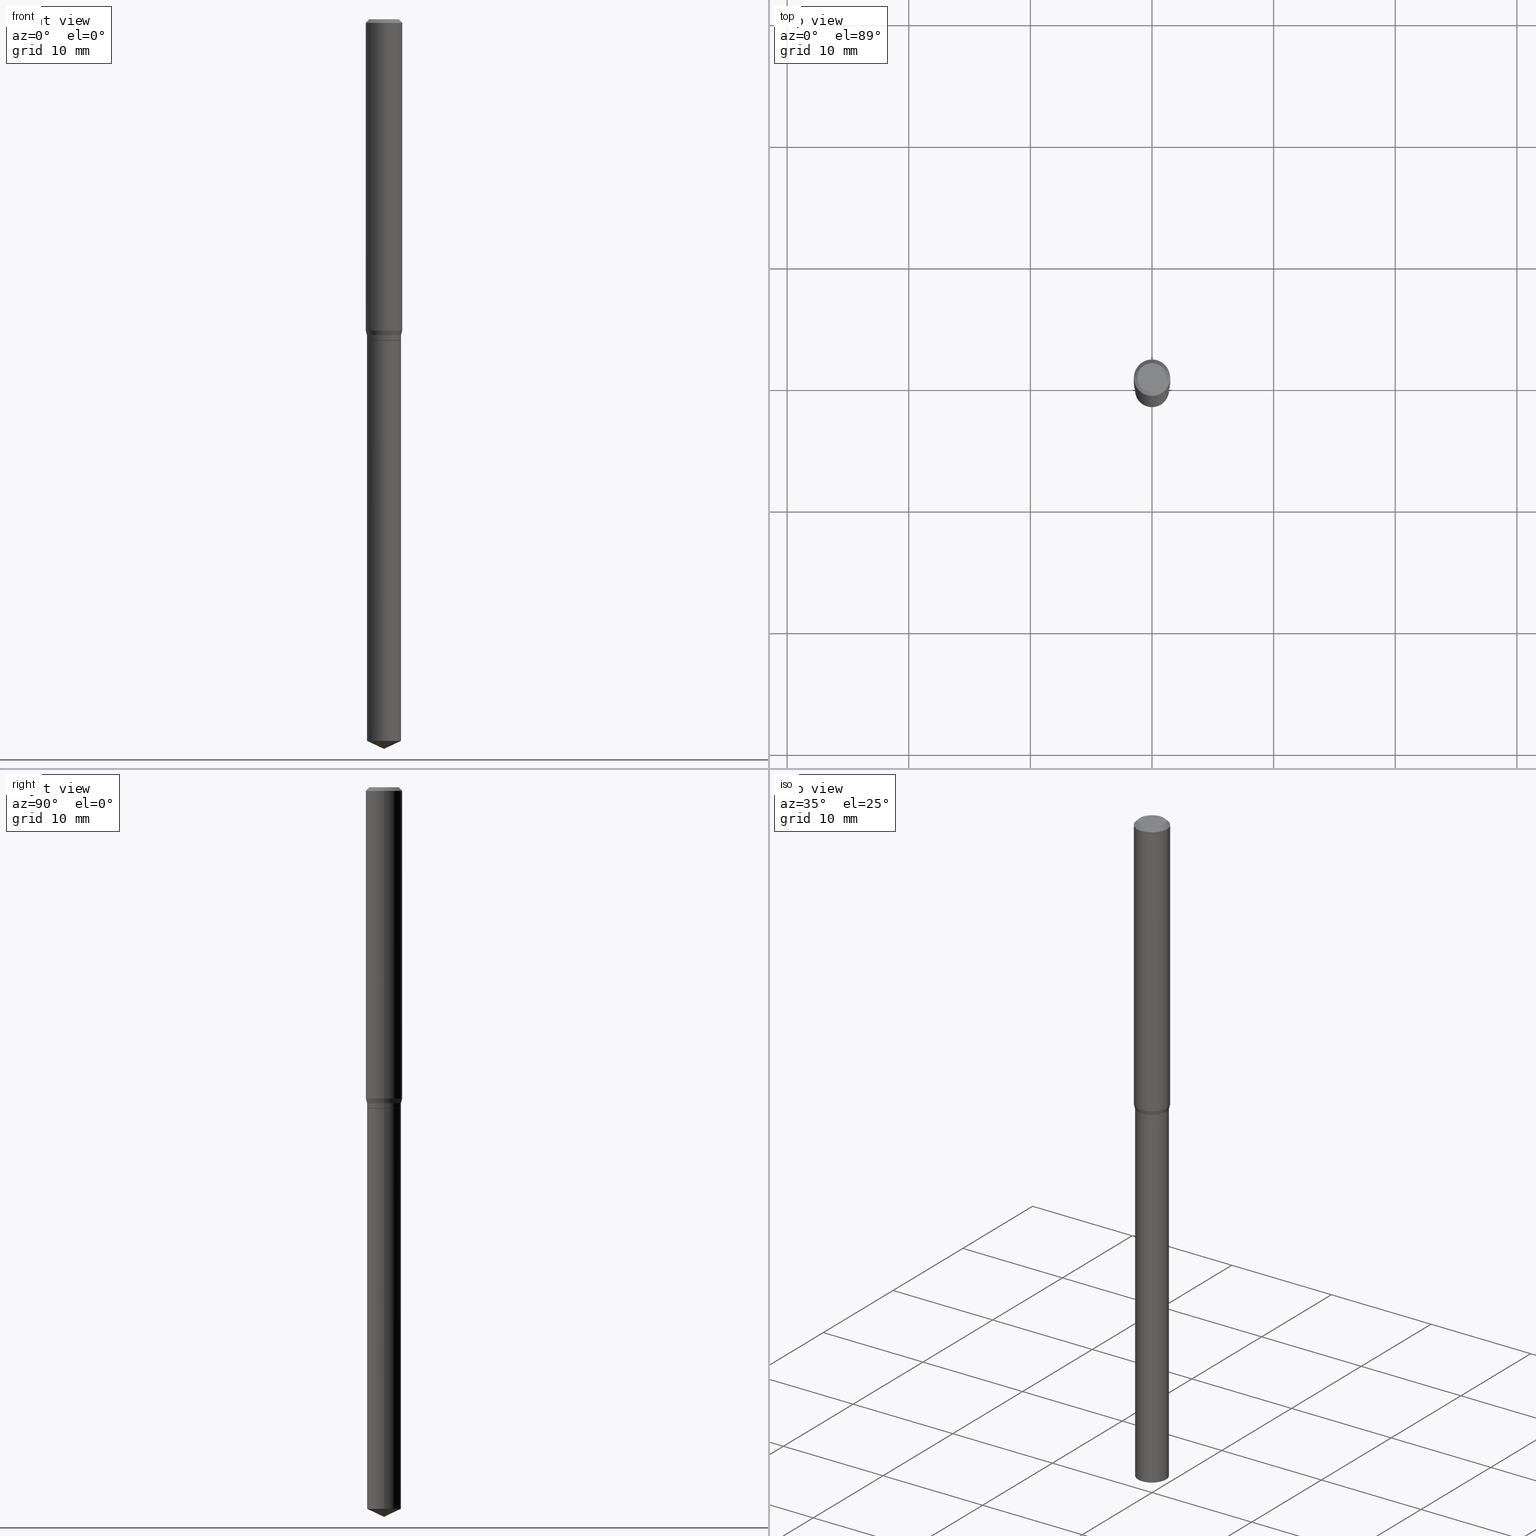
[diagram: canonical four-view strip — front | top / right | iso, engineering-drawing reading convention]
A machine part, canonical four-view strip (front | top / right | iso — engineering-drawing reading convention). The complete STEP part file that produces these views, byte-faithful:
ISO-10303-21;
HEADER;
FILE_DESCRIPTION (( 'STEP AP203' ),
    '1' );
FILE_NAME ('08402.STEP',
    '2024-04-24T14:56:27',
    ( '' ),
    ( '' ),
    'SwSTEP 2.0',
    'SolidWorks 2023',
    '' );
FILE_SCHEMA (( 'CONFIG_CONTROL_DESIGN' ));
ENDSEC;

DATA;
#1 = ORIENTED_EDGE ( 'NONE', *, *, #441, .T. ) ;
#2 =( NAMED_UNIT ( * ) SI_UNIT ( $, .STERADIAN. ) SOLID_ANGLE_UNIT ( ) );
#3 = AXIS2_PLACEMENT_3D ( 'NONE', #109, #18, #473 ) ;
#4 = ORIENTED_EDGE ( 'NONE', *, *, #191, .F. ) ;
#5 = CARTESIAN_POINT ( 'NONE',  ( 0.05905000000000011628, -3.931611887638806444E-15, -1.007958399310102893 ) ) ;
#6 = CARTESIAN_POINT ( 'NONE',  ( 2.541331183387593623E-29, -3.628347407325796590E-15, -1.039199999999999902 ) ) ;
#7 = DIRECTION ( 'NONE',  ( -2.445468806185136597E-29, 3.491481338843145583E-15, 1.000000000000000000 ) ) ;
#8 = DIRECTION ( 'NONE',  ( 1.000000000000000000, -6.982962677686265922E-15, 4.876176775795936353E-29 ) ) ;
#9 = DIRECTION ( 'NONE',  ( -0.7071067811865173747, 7.493145998870245297E-15, 0.7071067811865776598 ) ) ;
#10 = ORIENTED_EDGE ( 'NONE', *, *, #273, .F. ) ;
#11 = EDGE_CURVE ( 'NONE', #62, #220, #208, .T. ) ;
#12 = VECTOR ( 'NONE', #175, 39.37007874015748143 ) ;
#13 = DIRECTION ( 'NONE',  ( -2.438088387897960049E-29, 3.491481338843145188E-15, 1.000000000000000000 ) ) ;
#14 = AXIS2_PLACEMENT_3D ( 'NONE', #106, #410, #292 ) ;
#15 = DIRECTION ( 'NONE',  ( 1.000000000000000000, -6.982962677686266711E-15, 0.000000000000000000 ) ) ;
#16 = CARTESIAN_POINT ( 'NONE',  ( 5.776197320209293305E-29, -8.246878922347511025E-15, -2.362000000000000099 ) ) ;
#17 = ORIENTED_EDGE ( 'NONE', *, *, #466, .T. ) ;
#18 = DIRECTION ( 'NONE',  ( 2.438088387897960049E-29, -3.491481338843145188E-15, -1.000000000000000000 ) ) ;
#19 = EDGE_LOOP ( 'NONE', ( #40, #334, #361, #30 ) ) ;
#20 = LINE ( 'NONE', #463, #199 ) ;
#21 = AXIS2_PLACEMENT_3D ( 'NONE', #285, #210, #44 ) ;
#22 = DIRECTION ( 'NONE',  ( 1.000000000000000000, -6.982962677686265133E-15, 0.000000000000000000 ) ) ;
#23 = VECTOR ( 'NONE', #363, 39.37007874015748143 ) ;
#24 = CYLINDRICAL_SURFACE ( 'NONE', #374, 0.05510000000000000314 ) ;
#25 = PERSON_AND_ORGANIZATION ( #401, #79 ) ;
#26 = ORIENTED_EDGE ( 'NONE', *, *, #273, .T. ) ;
#27 = EDGE_CURVE ( 'NONE', #489, #115, #340, .T. ) ;
#28 = CIRCLE ( 'NONE', #313, 0.05509999999999999620 ) ;
#29 = EDGE_CURVE ( 'NONE', #52, #393, #217, .T. ) ;
#30 = ORIENTED_EDGE ( 'NONE', *, *, #231, .F. ) ;
#31 = COORDINATED_UNIVERSAL_TIME_OFFSET ( 5, 0, .BEHIND. ) ;
#32 = APPROVAL_DATE_TIME ( #77, #416 ) ;
#33 = CARTESIAN_POINT ( 'NONE',  ( 0.000000000000000000, 0.000000000000000000, 0.000000000000000000 ) ) ;
#34 = CIRCLE ( 'NONE', #70, 0.05510000000000000314 ) ;
#35 = COORDINATED_UNIVERSAL_TIME_OFFSET ( 5, 0, .BEHIND. ) ;
#36 = DIRECTION ( 'NONE',  ( -2.445468806185136597E-29, 3.491481338843145583E-15, 1.000000000000000000 ) ) ;
#37 = PERSON_AND_ORGANIZATION ( #401, #79 ) ;
#38 = ORIENTED_EDGE ( 'NONE', *, *, #111, .T. ) ;
#39 = PERSON_AND_ORGANIZATION_ROLE ( 'design_owner' ) ;
#40 = ORIENTED_EDGE ( 'NONE', *, *, #466, .F. ) ;
#41 = APPROVAL_STATUS ( 'not_yet_approved' ) ;
#42 = ORIENTED_EDGE ( 'NONE', *, *, #312, .F. ) ;
#43 = CIRCLE ( 'NONE', #266, 0.05510000000000000314 ) ;
#44 = DIRECTION ( 'NONE',  ( 1.000000000000000000, -6.982962677686265133E-15, 0.000000000000000000 ) ) ;
#45 = ADVANCED_FACE ( 'NONE', ( #365 ), #142, .T. ) ;
#46 = DIRECTION ( 'NONE',  ( 1.000000000000000000, -6.982962677686265133E-15, 0.000000000000000000 ) ) ;
#47 = VERTEX_POINT ( 'NONE', #467 ) ;
#48 = CALENDAR_DATE ( 2024, 24, 4 ) ;
#49 = ORIENTED_EDGE ( 'NONE', *, *, #483, .T. ) ;
#50 = FACE_OUTER_BOUND ( 'NONE', #345, .T. ) ;
#51 = CARTESIAN_POINT ( 'NONE',  ( -0.05460000000000000270, -3.240391073600782017E-15, -1.039199999999999902 ) ) ;
#52 = VERTEX_POINT ( 'NONE', #16 ) ;
#53 = PRODUCT ( '08402', '08402', '', ( #100 ) ) ;
#54 = AXIS2_PLACEMENT_3D ( 'NONE', #98, #173, #325 ) ;
#55 = DIRECTION ( 'NONE',  ( 2.445468806185136597E-29, -3.491481338843145583E-15, -1.000000000000000000 ) ) ;
#56 = CONICAL_SURFACE ( 'NONE', #181, 0.05904999999999999832, 0.7853981633974452814 ) ;
#57 = LOCAL_TIME ( 10, 56, 27.00000000000000000, #31 ) ;
#58 = CARTESIAN_POINT ( 'NONE',  ( -0.05509999999999999620, -3.179228917831070712E-15, -1.022700000000000164 ) ) ;
#59 = CARTESIAN_POINT ( 'NONE',  ( 8.265746106709734507E-48, -1.180129479067563789E-33, -3.380025165646692144E-19 ) ) ;
#60 = DIRECTION ( 'NONE',  ( -2.445468806185136597E-29, 3.491481338843145583E-15, 1.000000000000000000 ) ) ;
#61 = ORIENTED_EDGE ( 'NONE', *, *, #484, .F. ) ;
#62 = VERTEX_POINT ( 'NONE', #464 ) ;
#63 = DIMENSIONAL_EXPONENTS ( 1.000000000000000000, 0.000000000000000000, 0.000000000000000000, 0.000000000000000000, 0.000000000000000000, 0.000000000000000000, 0.000000000000000000 ) ;
#64 = ORIENTED_EDGE ( 'NONE', *, *, #474, .T. ) ;
#65 = AXIS2_PLACEMENT_3D ( 'NONE', #222, #105, #399 ) ;
#66 = EDGE_LOOP ( 'NONE', ( #49, #169, #327, #101 ) ) ;
#67 = PLANE ( 'NONE',  #3 ) ;
#68 = PRODUCT_DEFINITION ( 'UNKNOWN', '', #409, #186 ) ;
#69 = AXIS2_PLACEMENT_3D ( 'NONE', #90, #13, #283 ) ;
#70 = AXIS2_PLACEMENT_3D ( 'NONE', #153, #168, #87 ) ;
#71 = CALENDAR_DATE ( 2024, 24, 4 ) ;
#72 = CONICAL_SURFACE ( 'NONE', #261, 84.42940631927528727, 1.134464013796320225 ) ;
#73 = ADVANCED_FACE ( 'NONE', ( #140 ), #291, .F. ) ;
#74 = DIRECTION ( 'NONE',  ( -2.445468806185136877E-29, 3.491481338843145188E-15, 1.000000000000000000 ) ) ;
#75 = FACE_OUTER_BOUND ( 'NONE', #120, .T. ) ;
#76 = PERSON_AND_ORGANIZATION_ROLE ( 'classification_officer' ) ;
#77 = DATE_AND_TIME ( #383, #240 ) ;
#78 = DIRECTION ( 'NONE',  ( -2.445468806185136597E-29, 3.491481338843145583E-15, 1.000000000000000000 ) ) ;
#79 = ORGANIZATION ( 'UNSPECIFIED', 'UNSPECIFIED', '' ) ;
#80 = CARTESIAN_POINT ( 'NONE',  ( -0.05509999999999999620, -3.207160768541815164E-15, -1.038699999999999957 ) ) ;
#81 = ORIENTED_EDGE ( 'NONE', *, *, #483, .F. ) ;
#82 = CIRCLE ( 'NONE', #227, 0.05509999999999999620 ) ;
#83 = ADVANCED_FACE ( 'NONE', ( #281 ), #72, .T. ) ;
#84 = DATE_TIME_ROLE ( 'classification_date' ) ;
#85 = VECTOR ( 'NONE', #296, 39.37007874015748143 ) ;
#86 = AXIS2_PLACEMENT_3D ( 'NONE', #450, #78, #445 ) ;
#87 = DIRECTION ( 'NONE',  ( 1.000000000000000000, -6.982962677686265133E-15, 0.000000000000000000 ) ) ;
#88 = CC_DESIGN_APPROVAL ( #118, ( #409 ) ) ;
#89 = ADVANCED_FACE ( 'NONE', ( #351 ), #174, .T. ) ;
#90 = CARTESIAN_POINT ( 'NONE',  ( 2.541331183387593623E-29, -3.628347407325796590E-15, -1.039199999999999902 ) ) ;
#91 = DIRECTION ( 'NONE',  ( 2.438088387897960049E-29, -3.491481338843145188E-15, -1.000000000000000000 ) ) ;
#92 = CARTESIAN_POINT ( 'NONE',  ( -9.050210213589845843E-28, 1.292130163076976058E-13, 37.00807874015747956 ) ) ;
#93 = DIRECTION ( 'NONE',  ( -2.445468806185136597E-29, 3.491481338843145583E-15, 1.000000000000000000 ) ) ;
#94 = DIRECTION ( 'NONE',  ( 0.2588190451025215721, 1.565188264969619995E-15, 0.9659258262890679791 ) ) ;
#95 = EDGE_CURVE ( 'NONE', #47, #110, #424, .T. ) ;
#96 = CARTESIAN_POINT ( 'NONE',  ( 2.888098660104663766E-31, -4.123439461173779647E-17, -0.01181000000000007044 ) ) ;
#97 = CONICAL_SURFACE ( 'NONE', #414, 0.05509999999999999620, 0.2617993877991502960 ) ;
#98 = CARTESIAN_POINT ( 'NONE',  ( 2.541331183387593623E-29, -3.628347407325796590E-15, -1.039199999999999902 ) ) ;
#99 = APPLICATION_CONTEXT ( 'configuration controlled 3d designs of mechanical parts and assemblies' ) ;
#100 = MECHANICAL_CONTEXT ( 'NONE', #99, 'mechanical' ) ;
#101 = ORIENTED_EDGE ( 'NONE', *, *, #413, .F. ) ;
#102 = VERTEX_POINT ( 'NONE', #459 ) ;
#103 = CARTESIAN_POINT ( 'NONE',  ( 2.541331183387594184E-29, -3.628347407325797379E-15, -1.039200000000000124 ) ) ;
#104 = ORIENTED_EDGE ( 'NONE', *, *, #11, .F. ) ;
#105 = DIRECTION ( 'NONE',  ( -2.445468806185136597E-29, 3.491481338843145583E-15, 1.000000000000000000 ) ) ;
#106 = CARTESIAN_POINT ( 'NONE',  ( 8.265746106709734507E-48, -1.180129479067563789E-33, -3.380025165646692144E-19 ) ) ;
#107 = EDGE_CURVE ( 'NONE', #102, #47, #343, .T. ) ;
#108 = APPROVAL_PERSON_ORGANIZATION ( #376, #118, #406 ) ;
#109 = CARTESIAN_POINT ( 'NONE',  ( 4.132873053354867254E-48, -5.900647395337818946E-34, -1.690012582823346072E-19 ) ) ;
#110 = VERTEX_POINT ( 'NONE', #211 ) ;
#111 = EDGE_CURVE ( 'NONE', #115, #489, #196, .T. ) ;
#112 = COORDINATED_UNIVERSAL_TIME_OFFSET ( 5, 0, .BEHIND. ) ;
#113 = PERSON_AND_ORGANIZATION ( #401, #79 ) ;
#114 = VECTOR ( 'NONE', #241, 39.37007874015748143 ) ;
#115 = VERTEX_POINT ( 'NONE', #204 ) ;
#116 = ORIENTED_EDGE ( 'NONE', *, *, #170, .F. ) ;
#117 = CARTESIAN_POINT ( 'NONE',  ( 0.000000000000000000, 0.000000000000000000, 0.000000000000000000 ) ) ;
#118 = APPROVAL ( #479, 'UNSPECIFIED' ) ;
#119 = DIRECTION ( 'NONE',  ( -2.445468806185136597E-29, 3.491481338843145583E-15, 1.000000000000000000 ) ) ;
#120 = EDGE_LOOP ( 'NONE', ( #1, #17, #61, #42 ) ) ;
#121 = AXIS2_PLACEMENT_3D ( 'NONE', #428, #461, #137 ) ;
#122 = AXIS2_PLACEMENT_3D ( 'NONE', #397, #93, #172 ) ;
#123 = CALENDAR_DATE ( 2024, 24, 4 ) ;
#124 = ORIENTED_EDGE ( 'NONE', *, *, #149, .F. ) ;
#125 = AXIS2_PLACEMENT_3D ( 'NONE', #421, #36, #360 ) ;
#126 = CARTESIAN_POINT ( 'NONE',  ( -0.05904999999999999832, -1.360675682600244344E-15, -0.01181000000000007044 ) ) ;
#127 = APPROVAL_DATE_TIME ( #488, #118 ) ;
#128 = EDGE_LOOP ( 'NONE', ( #380, #415 ) ) ;
#129 = DIRECTION ( 'NONE',  ( 2.445468806185136597E-29, -3.491481338843145583E-15, -1.000000000000000000 ) ) ;
#130 = CARTESIAN_POINT ( 'NONE',  ( 0.05510000000000000314, -4.013108650866310965E-15, -1.039200000000000124 ) ) ;
#131 = EDGE_CURVE ( 'NONE', #102, #458, #398, .T. ) ;
#132 = CYLINDRICAL_SURFACE ( 'NONE', #341, 0.05509999999999999620 ) ;
#133 = PLANE ( 'NONE',  #462 ) ;
#134 = APPROVAL_PERSON_ORGANIZATION ( #206, #416, #487 ) ;
#135 = CARTESIAN_POINT ( 'NONE',  ( 2.541331183387593623E-29, -3.628347407325796590E-15, -1.039199999999999902 ) ) ;
#136 = CIRCLE ( 'NONE', #14, 0.04724000000000000421 ) ;
#137 = DIRECTION ( 'NONE',  ( 1.000000000000000000, -6.982962677686266711E-15, 0.000000000000000000 ) ) ;
#138 = DIRECTION ( 'NONE',  ( -2.445468806185136597E-29, 3.491481338843145583E-15, 1.000000000000000000 ) ) ;
#139 = ORIENTED_EDGE ( 'NONE', *, *, #149, .T. ) ;
#140 = FACE_OUTER_BOUND ( 'NONE', #156, .T. ) ;
#141 = EDGE_LOOP ( 'NONE', ( #370, #180, #307, #387 ) ) ;
#142 = CONICAL_SURFACE ( 'NONE', #21, 0.05460000000000000270, 0.7853981633974056464 ) ;
#143 = AXIS2_PLACEMENT_3D ( 'NONE', #354, #356, #278 ) ;
#144 = ORIENTED_EDGE ( 'NONE', *, *, #413, .T. ) ;
#145 = VECTOR ( 'NONE', #147, 39.37007874015748143 ) ;
#146 = CONICAL_SURFACE ( 'NONE', #394, 0.05904999999999999832, 0.7853981633974452814 ) ;
#147 = DIRECTION ( 'NONE',  ( -0.2588190451025215721, 5.211531920934551831E-15, 0.9659258262890679791 ) ) ;
#148 =( LENGTH_UNIT ( ) NAMED_UNIT ( * ) SI_UNIT ( $, .METRE. ) );
#149 = EDGE_CURVE ( 'NONE', #393, #62, #469, .T. ) ;
#150 = LINE ( 'NONE', #230, #85 ) ;
#151 = ORIENTED_EDGE ( 'NONE', *, *, #170, .T. ) ;
#152 = DIRECTION ( 'NONE',  ( -2.445468806185136877E-29, 3.491481338843145188E-15, 1.000000000000000000 ) ) ;
#153 = CARTESIAN_POINT ( 'NONE',  ( 2.541331183387593623E-29, -3.628347407325796590E-15, -1.039199999999999902 ) ) ;
#154 = LOCAL_TIME ( 10, 56, 27.00000000000000000, #35 ) ;
#155 = LOCAL_TIME ( 10, 56, 27.00000000000000000, #112 ) ;
#156 = EDGE_LOOP ( 'NONE', ( #384, #243 ) ) ;
#157 = CC_DESIGN_PERSON_AND_ORGANIZATION_ASSIGNMENT ( #37, #269, ( #68 ) ) ;
#158 = DIRECTION ( 'NONE',  ( -2.445468806185136597E-29, 3.491481338843145583E-15, 1.000000000000000000 ) ) ;
#159 = AXIS2_PLACEMENT_3D ( 'NONE', #103, #298, #255 ) ;
#160 = SECURITY_CLASSIFICATION ( '', '', #347 ) ;
#161 = DATE_AND_TIME ( #311, #57 ) ;
#162 = VERTEX_POINT ( 'NONE', #178 ) ;
#163 = AXIS2_PLACEMENT_3D ( 'NONE', #6, #247, #46 ) ;
#164 = EDGE_CURVE ( 'NONE', #166, #350, #328, .T. ) ;
#165 = DIRECTION ( 'NONE',  ( -2.445468806185136597E-29, 3.491481338843145583E-15, 1.000000000000000000 ) ) ;
#166 = VERTEX_POINT ( 'NONE', #250 ) ;
#167 = APPLICATION_PROTOCOL_DEFINITION ( 'international standard', 'config_control_design', 1994, #99 ) ;
#168 = DIRECTION ( 'NONE',  ( -2.445468806185136597E-29, 3.491481338843145583E-15, 1.000000000000000000 ) ) ;
#169 = ORIENTED_EDGE ( 'NONE', *, *, #429, .T. ) ;
#170 = EDGE_CURVE ( 'NONE', #339, #309, #403, .T. ) ;
#171 = ORIENTED_EDGE ( 'NONE', *, *, #375, .T. ) ;
#172 = DIRECTION ( 'NONE',  ( 1.000000000000000000, -6.982962677686266711E-15, 0.000000000000000000 ) ) ;
#173 = DIRECTION ( 'NONE',  ( -2.445468806185136597E-29, 3.491481338843145583E-15, 1.000000000000000000 ) ) ;
#174 = CYLINDRICAL_SURFACE ( 'NONE', #226, 0.05509999999999999620 ) ;
#175 = DIRECTION ( 'NONE',  ( -0.9063077870366524902, 7.915267918739014631E-15, 0.4226182617406940567 ) ) ;
#176 = ORIENTED_EDGE ( 'NONE', *, *, #448, .F. ) ;
#177 = LINE ( 'NONE', #477, #423 ) ;
#178 = CARTESIAN_POINT ( 'NONE',  ( -0.04724000000000000421, 3.504923541997677355E-16, -3.380025165670481712E-19 ) ) ;
#179 = DIRECTION ( 'NONE',  ( 1.000000000000000000, -6.982962677686274599E-15, 0.000000000000000000 ) ) ;
#180 = ORIENTED_EDGE ( 'NONE', *, *, #304, .F. ) ;
#181 = AXIS2_PLACEMENT_3D ( 'NONE', #431, #129, #286 ) ;
#182 = FACE_OUTER_BOUND ( 'NONE', #128, .T. ) ;
#183 = DIRECTION ( 'NONE',  ( -2.445468806185136877E-29, 3.491481338843145188E-15, 1.000000000000000000 ) ) ;
#184 = APPROVAL ( #444, 'UNSPECIFIED' ) ;
#185 = DIRECTION ( 'NONE',  ( 1.000000000000000000, -6.982962677686265133E-15, 0.000000000000000000 ) ) ;
#186 = DESIGN_CONTEXT ( 'detailed design', #262, 'design' ) ;
#187 = CARTESIAN_POINT ( 'NONE',  ( -9.050210213589845843E-28, 1.292130163076976058E-13, 37.00807874015747956 ) ) ;
#188 = ORIENTED_EDGE ( 'NONE', *, *, #203, .F. ) ;
#189 = CIRCLE ( 'NONE', #455, 0.05905000000000011628 ) ;
#190 = FACE_OUTER_BOUND ( 'NONE', #407, .T. ) ;
#191 = EDGE_CURVE ( 'NONE', #458, #110, #225, .T. ) ;
#192 = MANIFOLD_SOLID_BREP ( 'Body-Move/Copy2[2]', #215 ) ;
#193 = LENGTH_MEASURE_WITH_UNIT ( LENGTH_MEASURE( 0.02539999999999999897 ), #148 );
#194 = FACE_OUTER_BOUND ( 'NONE', #268, .T. ) ;
#195 = ADVANCED_FACE ( 'NONE', ( #244 ), #146, .T. ) ;
#196 = CIRCLE ( 'NONE', #125, 0.05904999999999999832 ) ;
#197 = CYLINDRICAL_SURFACE ( 'NONE', #439, 0.05905000000000006077 ) ;
#198 = ORIENTED_EDGE ( 'NONE', *, *, #429, .F. ) ;
#199 = VECTOR ( 'NONE', #74, 39.37007874015748143 ) ;
#200 = DIRECTION ( 'NONE',  ( 1.000000000000000000, -6.982962677686266711E-15, 4.876176775795935793E-29 ) ) ;
#201 = ORIENTED_EDGE ( 'NONE', *, *, #284, .T. ) ;
#202 = CARTESIAN_POINT ( 'NONE',  ( 5.776197320209293305E-29, -8.246878922347511025E-15, -2.362000000000000099 ) ) ;
#203 = EDGE_CURVE ( 'NONE', #355, #162, #136, .T. ) ;
#204 = CARTESIAN_POINT ( 'NONE',  ( 0.05904999999999999832, -4.535783407291118600E-16, -0.01181000000000007044 ) ) ;
#205 = ORIENTED_EDGE ( 'NONE', *, *, #107, .T. ) ;
#206 = PERSON_AND_ORGANIZATION ( #401, #79 ) ;
#207 = APPROVAL_DATE_TIME ( #161, #184 ) ;
#208 = CIRCLE ( 'NONE', #54, 0.05510000000000000314 ) ;
#209 = CARTESIAN_POINT ( 'NONE',  ( 0.000000000000000000, 0.000000000000000000, 0.000000000000000000 ) ) ;
#210 = DIRECTION ( 'NONE',  ( -2.445468806185136597E-29, 3.491481338843145583E-15, 1.000000000000000000 ) ) ;
#211 = CARTESIAN_POINT ( 'NONE',  ( 0.05509999999999999620, -4.011362910196888672E-15, -1.038699999999999957 ) ) ;
#212 = ORIENTED_EDGE ( 'NONE', *, *, #304, .T. ) ;
#213 = CARTESIAN_POINT ( 'NONE',  ( -0.05510000000000000314, -3.236838359921982302E-15, -1.039200000000000124 ) ) ;
#214 = DIRECTION ( 'NONE',  ( -2.445468806185136597E-29, 3.491481338843145583E-15, 1.000000000000000000 ) ) ;
#215 = CLOSED_SHELL ( 'NONE', ( #344, #364, #264, #256, #267, #89, #490, #389, #195, #245, #73, #45 ) ) ;
#216 = ADVANCED_FACE ( 'NONE', ( #372 ), #24, .T. ) ;
#217 = LINE ( 'NONE', #332, #400 ) ;
#218 = CARTESIAN_POINT ( 'NONE',  ( -0.05905000000000011628, -3.099692456055091636E-15, -1.007958399310102893 ) ) ;
#219 = CARTESIAN_POINT ( 'NONE',  ( -0.05510000000000000314, -5.501249838826793473E-15, -1.039199999999999902 ) ) ;
#220 = VERTEX_POINT ( 'NONE', #219 ) ;
#221 = DIRECTION ( 'NONE',  ( -2.445468806185136597E-29, 3.491481338843145583E-15, 1.000000000000000000 ) ) ;
#222 = CARTESIAN_POINT ( 'NONE',  ( 2.540108448984501382E-29, -3.626601666656375086E-15, -1.038699999999999957 ) ) ;
#223 = EDGE_CURVE ( 'NONE', #355, #115, #251, .T. ) ;
#224 = CONICAL_SURFACE ( 'NONE', #472, 0.05460000000000000270, 0.7853981633974056464 ) ;
#225 = CIRCLE ( 'NONE', #65, 0.05509999999999999620 ) ;
#226 = AXIS2_PLACEMENT_3D ( 'NONE', #430, #242, #8 ) ;
#227 = AXIS2_PLACEMENT_3D ( 'NONE', #404, #60, #294 ) ;
#228 = ORIENTED_EDGE ( 'NONE', *, *, #164, .F. ) ;
#229 = LINE ( 'NONE', #202, #12 ) ;
#230 = CARTESIAN_POINT ( 'NONE',  ( -0.05904999999999999832, 3.711095515056362547E-16, -0.01181000000000007044 ) ) ;
#231 = EDGE_CURVE ( 'NONE', #339, #166, #82, .T. ) ;
#232 = APPLICATION_PROTOCOL_DEFINITION ( 'international standard', 'config_control_design', 1994, #262 ) ;
#233 = LOCAL_TIME ( 10, 56, 27.00000000000000000, #426 ) ;
#234 = EDGE_LOOP ( 'NONE', ( #64, #254, #239, #367 ) ) ;
#235 = APPROVAL_ROLE ( '' ) ;
#236 = EDGE_LOOP ( 'NONE', ( #116, #303, #453, #396 ) ) ;
#237 = EDGE_LOOP ( 'NONE', ( #188, #257, #38, #270 ) ) ;
#238 = ADVANCED_FACE ( 'NONE', ( #190 ), #369, .T. ) ;
#239 = ORIENTED_EDGE ( 'NONE', *, *, #441, .F. ) ;
#240 = LOCAL_TIME ( 10, 56, 27.00000000000000000, #446 ) ;
#241 = DIRECTION ( 'NONE',  ( -2.445468806185136877E-29, 3.491481338843145188E-15, 1.000000000000000000 ) ) ;
#242 = DIRECTION ( 'NONE',  ( -2.445468806185136597E-29, 3.491481338843145583E-15, 1.000000000000000000 ) ) ;
#243 = ORIENTED_EDGE ( 'NONE', *, *, #107, .F. ) ;
#244 = FACE_OUTER_BOUND ( 'NONE', #141, .T. ) ;
#245 = ADVANCED_FACE ( 'NONE', ( #194 ), #67, .F. ) ;
#246 = FACE_OUTER_BOUND ( 'NONE', #237, .T. ) ;
#247 = DIRECTION ( 'NONE',  ( -2.445468806185136597E-29, 3.491481338843145583E-15, 1.000000000000000000 ) ) ;
#248 = PERSON_AND_ORGANIZATION ( #401, #79 ) ;
#249 = DIRECTION ( 'NONE',  ( -2.445468806185136597E-29, 3.491481338843145583E-15, 1.000000000000000000 ) ) ;
#250 = CARTESIAN_POINT ( 'NONE',  ( 0.05509999999999999620, -3.955499208775398981E-15, -1.022700000000000164 ) ) ;
#251 = LINE ( 'NONE', #433, #302 ) ;
#252 = CONICAL_SURFACE ( 'NONE', #86, 0.05509999999999999620, 0.2617993877991502960 ) ;
#253 = CC_DESIGN_SECURITY_CLASSIFICATION ( #160, ( #409 ) ) ;
#254 = ORIENTED_EDGE ( 'NONE', *, *, #131, .T. ) ;
#255 = DIRECTION ( 'NONE',  ( 1.000000000000000000, -6.982962677686265133E-15, 0.000000000000000000 ) ) ;
#256 = ADVANCED_FACE ( 'NONE', ( #435 ), #252, .T. ) ;
#257 = ORIENTED_EDGE ( 'NONE', *, *, #223, .T. ) ;
#258 = PRODUCT_DEFINITION_SHAPE ( 'NONE', 'NONE',  #68 ) ;
#259 = CIRCLE ( 'NONE', #390, 0.05509999999999999620 ) ;
#260 = DIRECTION ( 'NONE',  ( -1.000000000000000000, 6.982962677686266711E-15, 0.000000000000000000 ) ) ;
#261 = AXIS2_PLACEMENT_3D ( 'NONE', #92, #381, #317 ) ;
#262 = APPLICATION_CONTEXT ( 'configuration controlled 3d designs of mechanical parts and assemblies' ) ;
#263 = DIRECTION ( 'NONE',  ( 1.000000000000000000, -6.982962677686274599E-15, 0.000000000000000000 ) ) ;
#264 = ADVANCED_FACE ( 'NONE', ( #419 ), #197, .T. ) ;
#265 = PERSON_AND_ORGANIZATION_ROLE ( 'design_supplier' ) ;
#266 = AXIS2_PLACEMENT_3D ( 'NONE', #388, #214, #179 ) ;
#267 = ADVANCED_FACE ( 'NONE', ( #75 ), #132, .T. ) ;
#268 = EDGE_LOOP ( 'NONE', ( #212, #274 ) ) ;
#269 = PERSON_AND_ORGANIZATION_ROLE ( 'creator' ) ;
#270 = ORIENTED_EDGE ( 'NONE', *, *, #436, .F. ) ;
#271 = CLOSED_SHELL ( 'NONE', ( #216, #83, #338, #238, #357 ) ) ;
#272 = VECTOR ( 'NONE', #152, 39.37007874015748143 ) ;
#273 = EDGE_CURVE ( 'NONE', #52, #295, #229, .T. ) ;
#274 = ORIENTED_EDGE ( 'NONE', *, *, #203, .T. ) ;
#275 = DATE_AND_TIME ( #71, #155 ) ;
#276 = VECTOR ( 'NONE', #94, 39.37007874015748143 ) ;
#277 = PERSON_AND_ORGANIZATION ( #401, #79 ) ;
#278 = DIRECTION ( 'NONE',  ( 1.000000000000000000, -6.982962677686265133E-15, 0.000000000000000000 ) ) ;
#279 = ORIENTED_EDGE ( 'NONE', *, *, #405, .T. ) ;
#280 = CARTESIAN_POINT ( 'NONE',  ( -0.05509999999999999620, -3.207160768541815164E-15, -1.022700000000000164 ) ) ;
#281 = FACE_OUTER_BOUND ( 'NONE', #333, .T. ) ;
#282 =( GEOMETRIC_REPRESENTATION_CONTEXT ( 3 ) GLOBAL_UNCERTAINTY_ASSIGNED_CONTEXT ( ( #315 ) ) GLOBAL_UNIT_ASSIGNED_CONTEXT ( ( #440, #478, #2 ) ) REPRESENTATION_CONTEXT ( 'NONE', 'WORKASPACE' ) );
#283 = DIRECTION ( 'NONE',  ( 1.000000000000000000, -6.982962677686265922E-15, 4.876176775795935793E-29 ) ) ;
#284 = EDGE_CURVE ( 'NONE', #295, #393, #43, .T. ) ;
#285 = CARTESIAN_POINT ( 'NONE',  ( 2.541331183387593623E-29, -3.628347407325796590E-15, -1.039199999999999902 ) ) ;
#286 = DIRECTION ( 'NONE',  ( -1.000000000000000000, 6.982962677686266711E-15, 0.000000000000000000 ) ) ;
#287 = CARTESIAN_POINT ( 'NONE',  ( 0.05509999999999999620, -3.955499208775398981E-15, -1.022700000000000164 ) ) ;
#288 = DIRECTION ( 'NONE',  ( -2.445468806185136597E-29, 3.491481338843145583E-15, 1.000000000000000000 ) ) ;
#289 = VECTOR ( 'NONE', #183, 39.37007874015748143 ) ;
#290 = FACE_OUTER_BOUND ( 'NONE', #234, .T. ) ;
#291 = PLANE ( 'NONE',  #69 ) ;
#292 = DIRECTION ( 'NONE',  ( 1.000000000000000000, -6.982962677686266711E-15, 4.876185090822587894E-29 ) ) ;
#293 = CIRCLE ( 'NONE', #382, 0.05510000000000000314 ) ;
#294 = DIRECTION ( 'NONE',  ( 1.000000000000000000, -6.982962677686265922E-15, 0.000000000000000000 ) ) ;
#295 = VERTEX_POINT ( 'NONE', #321 ) ;
#296 = DIRECTION ( 'NONE',  ( -0.7071067811865453523, 2.468850131082234184E-15, -0.7071067811865496822 ) ) ;
#297 = CARTESIAN_POINT ( 'NONE',  ( 5.713364540360402873E-29, -8.157170365135421298E-15, -2.336306448035660122 ) ) ;
#298 = DIRECTION ( 'NONE',  ( -2.445468806185136597E-29, 3.491481338843145583E-15, 1.000000000000000000 ) ) ;
#299 = VECTOR ( 'NONE', #391, 39.37007874015748143 ) ;
#300 = CC_DESIGN_DATE_AND_TIME_ASSIGNMENT ( #275, #84, ( #160 ) ) ;
#301 = CARTESIAN_POINT ( 'NONE',  ( 0.05509999999999999620, -3.847612435405132409E-16, 2.686773403463560667E-30 ) ) ;
#302 = VECTOR ( 'NONE', #337, 39.37007874015748143 ) ;
#303 = ORIENTED_EDGE ( 'NONE', *, *, #231, .T. ) ;
#304 = EDGE_CURVE ( 'NONE', #162, #355, #485, .T. ) ;
#305 = AXIS2_PLACEMENT_3D ( 'NONE', #209, #7, #319 ) ;
#306 = CIRCLE ( 'NONE', #143, 0.05460000000000000270 ) ;
#307 = ORIENTED_EDGE ( 'NONE', *, *, #436, .T. ) ;
#308 = PERSON_AND_ORGANIZATION ( #401, #79 ) ;
#309 = VERTEX_POINT ( 'NONE', #218 ) ;
#310 = ADVANCED_BREP_SHAPE_REPRESENTATION ( '08402', ( #359, #192, #349 ), #282 ) ;
#311 = CALENDAR_DATE ( 2024, 24, 4 ) ;
#312 = EDGE_CURVE ( 'NONE', #110, #166, #368, .T. ) ;
#313 = AXIS2_PLACEMENT_3D ( 'NONE', #452, #119, #386 ) ;
#314 = EDGE_LOOP ( 'NONE', ( #10, #471, #465 ) ) ;
#315 = UNCERTAINTY_MEASURE_WITH_UNIT (LENGTH_MEASURE( 1.000000000000000082E-05 ), #440, 'distance_accuracy_value', 'NONE');
#316 = LINE ( 'NONE', #420, #299 ) ;
#317 = DIRECTION ( 'NONE',  ( 1.000000000000000000, -6.982962677686266711E-15, 0.000000000000000000 ) ) ;
#318 = FACE_OUTER_BOUND ( 'NONE', #236, .T. ) ;
#319 = DIRECTION ( 'NONE',  ( 1.000000000000000000, -6.982962677686266711E-15, 4.876176775795935793E-29 ) ) ;
#320 = DIRECTION ( 'NONE',  ( 0.9063077870366524902, -4.853149677051415866E-15, 0.4226182617406940567 ) ) ;
#321 = CARTESIAN_POINT ( 'NONE',  ( -0.05509999999999999620, -7.765661317731605038E-15, -2.336306448035660122 ) ) ;
#322 = DIRECTION ( 'NONE',  ( 0.000000000000000000, 0.000000000000000000, 1.000000000000000000 ) ) ;
#323 = CC_DESIGN_PERSON_AND_ORGANIZATION_ASSIGNMENT ( #248, #443, ( #409 ) ) ;
#324 = CONICAL_SURFACE ( 'NONE', #482, 84.42940631927528727, 1.134464013796320225 ) ;
#325 = DIRECTION ( 'NONE',  ( 1.000000000000000000, -6.982962677686265133E-15, 0.000000000000000000 ) ) ;
#326 = DIRECTION ( 'NONE',  ( 1.000000000000000000, -6.982962677686266711E-15, 4.876185090822587894E-29 ) ) ;
#327 = ORIENTED_EDGE ( 'NONE', *, *, #111, .F. ) ;
#328 = LINE ( 'NONE', #287, #276 ) ;
#329 = CARTESIAN_POINT ( 'NONE',  ( 2.500980948085539863E-29, -3.570737965234886183E-15, -1.022700000000000164 ) ) ;
#330 = EDGE_CURVE ( 'NONE', #393, #295, #293, .T. ) ;
#331 = CARTESIAN_POINT ( 'NONE',  ( 0.04724000000000000421, -3.852183633974369345E-16, -3.380025165621689721E-19 ) ) ;
#332 = CARTESIAN_POINT ( 'NONE',  ( 5.776197320209293305E-29, -8.246878922347511025E-15, -2.362000000000000099 ) ) ;
#333 = EDGE_LOOP ( 'NONE', ( #418, #26, #447 ) ) ;
#334 = ORIENTED_EDGE ( 'NONE', *, *, #191, .T. ) ;
#335 = AXIS2_PLACEMENT_3D ( 'NONE', #59, #425, #326 ) ;
#336 = DATE_AND_TIME ( #123, #154 ) ;
#337 = DIRECTION ( 'NONE',  ( 0.7071067811865453523, -7.319954787623248157E-15, -0.7071067811865496822 ) ) ;
#338 = ADVANCED_FACE ( 'NONE', ( #412 ), #324, .T. ) ;
#339 = VERTEX_POINT ( 'NONE', #280 ) ;
#340 = CIRCLE ( 'NONE', #121, 0.05904999999999999832 ) ;
#341 = AXIS2_PLACEMENT_3D ( 'NONE', #422, #158, #468 ) ;
#342 = CC_DESIGN_APPROVAL ( #184, ( #160 ) ) ;
#343 = CIRCLE ( 'NONE', #163, 0.05460000000000000270 ) ;
#344 = ADVANCED_FACE ( 'NONE', ( #290 ), #224, .T. ) ;
#345 = EDGE_LOOP ( 'NONE', ( #198, #171, #144, #434 ) ) ;
#346 = DATE_TIME_ROLE ( 'creation_date' ) ;
#347 = SECURITY_CLASSIFICATION_LEVEL ( 'unclassified' ) ;
#348 = DIRECTION ( 'NONE',  ( -2.445468806185136597E-29, 3.491481338843145583E-15, 1.000000000000000000 ) ) ;
#349 = AXIS2_PLACEMENT_3D ( 'NONE', #117, #322, #366 ) ;
#350 = VERTEX_POINT ( 'NONE', #5 ) ;
#351 = FACE_OUTER_BOUND ( 'NONE', #19, .T. ) ;
#352 = ORIENTED_EDGE ( 'NONE', *, *, #330, .T. ) ;
#353 = CC_DESIGN_PERSON_AND_ORGANIZATION_ASSIGNMENT ( #277, #39, ( #53 ) ) ;
#354 = CARTESIAN_POINT ( 'NONE',  ( 2.541331183387593623E-29, -3.628347407325796590E-15, -1.039199999999999902 ) ) ;
#355 = VERTEX_POINT ( 'NONE', #331 ) ;
#356 = DIRECTION ( 'NONE',  ( -2.445468806185136597E-29, 3.491481338843145583E-15, 1.000000000000000000 ) ) ;
#357 = ADVANCED_FACE ( 'NONE', ( #182 ), #133, .F. ) ;
#358 = DIRECTION ( 'NONE',  ( -1.000000000000000000, 6.982962677686265922E-15, -4.876176775795935793E-29 ) ) ;
#359 = MANIFOLD_SOLID_BREP ( 'Body-Move/Copy2[1]', #271 ) ;
#360 = DIRECTION ( 'NONE',  ( 1.000000000000000000, -6.982962677686266711E-15, 0.000000000000000000 ) ) ;
#361 = ORIENTED_EDGE ( 'NONE', *, *, #312, .T. ) ;
#362 = CC_DESIGN_APPROVAL ( #416, ( #68 ) ) ;
#363 = DIRECTION ( 'NONE',  ( 0.7071067811865173747, -2.468850131081940727E-15, 0.7071067811865776598 ) ) ;
#364 = ADVANCED_FACE ( 'NONE', ( #246 ), #56, .T. ) ;
#365 = FACE_OUTER_BOUND ( 'NONE', #486, .T. ) ;
#366 = DIRECTION ( 'NONE',  ( 1.000000000000000000, 0.000000000000000000, 0.000000000000000000 ) ) ;
#367 = ORIENTED_EDGE ( 'NONE', *, *, #95, .F. ) ;
#368 = LINE ( 'NONE', #301, #272 ) ;
#369 = CYLINDRICAL_SURFACE ( 'NONE', #159, 0.05510000000000000314 ) ;
#370 = ORIENTED_EDGE ( 'NONE', *, *, #223, .F. ) ;
#371 = DIRECTION ( 'NONE',  ( -2.445468806185136877E-29, 3.491481338843145188E-15, 1.000000000000000000 ) ) ;
#372 = FACE_OUTER_BOUND ( 'NONE', #470, .T. ) ;
#373 = APPROVAL_PERSON_ORGANIZATION ( #308, #184, #235 ) ;
#374 = AXIS2_PLACEMENT_3D ( 'NONE', #378, #288, #22 ) ;
#375 = EDGE_CURVE ( 'NONE', #309, #350, #417, .T. ) ;
#376 = PERSON_AND_ORGANIZATION ( #401, #79 ) ;
#377 = DIRECTION ( 'NONE',  ( -2.445468806185136597E-29, 3.491481338843145583E-15, 1.000000000000000000 ) ) ;
#378 = CARTESIAN_POINT ( 'NONE',  ( 2.541331183387594184E-29, -3.628347407325797379E-15, -1.039200000000000124 ) ) ;
#379 = PRODUCT_RELATED_PRODUCT_CATEGORY ( 'detail', '', ( #53 ) ) ;
#380 = ORIENTED_EDGE ( 'NONE', *, *, #11, .T. ) ;
#381 = DIRECTION ( 'NONE',  ( -2.445468806185136597E-29, 3.491481338843145583E-15, 1.000000000000000000 ) ) ;
#382 = AXIS2_PLACEMENT_3D ( 'NONE', #297, #442, #263 ) ;
#383 = CALENDAR_DATE ( 2024, 24, 4 ) ;
#384 = ORIENTED_EDGE ( 'NONE', *, *, #474, .F. ) ;
#385 = CC_DESIGN_PERSON_AND_ORGANIZATION_ASSIGNMENT ( #113, #265, ( #409 ) ) ;
#386 = DIRECTION ( 'NONE',  ( 1.000000000000000000, -6.982962677686265922E-15, 0.000000000000000000 ) ) ;
#387 = ORIENTED_EDGE ( 'NONE', *, *, #27, .T. ) ;
#388 = CARTESIAN_POINT ( 'NONE',  ( 5.713364540360402873E-29, -8.157170365135421298E-15, -2.336306448035660122 ) ) ;
#389 = ADVANCED_FACE ( 'NONE', ( #50 ), #392, .T. ) ;
#390 = AXIS2_PLACEMENT_3D ( 'NONE', #438, #377, #481 ) ;
#391 = DIRECTION ( 'NONE',  ( -2.445468806185136877E-29, 3.491481338843145188E-15, 1.000000000000000000 ) ) ;
#392 = CYLINDRICAL_SURFACE ( 'NONE', #305, 0.05905000000000006077 ) ;
#393 = VERTEX_POINT ( 'NONE', #460 ) ;
#394 = AXIS2_PLACEMENT_3D ( 'NONE', #96, #55, #260 ) ;
#395 = CARTESIAN_POINT ( 'NONE',  ( 0.05460000000000000270, -4.009617169527467169E-15, -1.039199999999999902 ) ) ;
#396 = ORIENTED_EDGE ( 'NONE', *, *, #375, .F. ) ;
#397 = CARTESIAN_POINT ( 'NONE',  ( 2.464930823445158340E-29, -3.519267941521431524E-15, -1.007958399310102893 ) ) ;
#398 = LINE ( 'NONE', #51, #411 ) ;
#399 = DIRECTION ( 'NONE',  ( 1.000000000000000000, -6.982962677686265922E-15, 0.000000000000000000 ) ) ;
#400 = VECTOR ( 'NONE', #320, 39.37007874015748143 ) ;
#401 = PERSON ( 'UNSPECIFIED', 'UNSPECIFIED', 'UNSPECIFIED', ('UNSPECIFIED'), ('UNSPECIFIED'), ('UNSPECIFIED') ) ;
#402 = LINE ( 'NONE', #213, #114 ) ;
#403 = LINE ( 'NONE', #58, #145 ) ;
#404 = CARTESIAN_POINT ( 'NONE',  ( 2.500980948085539863E-29, -3.570737965234886183E-15, -1.022700000000000164 ) ) ;
#405 = EDGE_CURVE ( 'NONE', #295, #220, #402, .T. ) ;
#406 = APPROVAL_ROLE ( '' ) ;
#407 = EDGE_LOOP ( 'NONE', ( #451, #201, #139, #176 ) ) ;
#408 = CC_DESIGN_DATE_AND_TIME_ASSIGNMENT ( #336, #346, ( #68 ) ) ;
#409 = PRODUCT_DEFINITION_FORMATION_WITH_SPECIFIED_SOURCE ( 'ANY', '', #53, .NOT_KNOWN. ) ;
#410 = DIRECTION ( 'NONE',  ( -2.445468806185136597E-29, 3.491481338843145583E-15, 1.000000000000000000 ) ) ;
#411 = VECTOR ( 'NONE', #9, 39.37007874015748143 ) ;
#412 = FACE_OUTER_BOUND ( 'NONE', #314, .T. ) ;
#413 = EDGE_CURVE ( 'NONE', #350, #115, #177, .T. ) ;
#414 = AXIS2_PLACEMENT_3D ( 'NONE', #329, #221, #476 ) ;
#415 = ORIENTED_EDGE ( 'NONE', *, *, #448, .T. ) ;
#416 = APPROVAL ( #41, 'UNSPECIFIED' ) ;
#417 = CIRCLE ( 'NONE', #122, 0.05905000000000011628 ) ;
#418 = ORIENTED_EDGE ( 'NONE', *, *, #29, .F. ) ;
#419 = FACE_OUTER_BOUND ( 'NONE', #66, .T. ) ;
#420 = CARTESIAN_POINT ( 'NONE',  ( -0.05509999999999999620, 3.915090474038151754E-16, -2.710333234730452780E-30 ) ) ;
#421 = CARTESIAN_POINT ( 'NONE',  ( 2.888098660104663766E-31, -4.123439461173779647E-17, -0.01181000000000007044 ) ) ;
#422 = CARTESIAN_POINT ( 'NONE',  ( 0.000000000000000000, 0.000000000000000000, 0.000000000000000000 ) ) ;
#423 = VECTOR ( 'NONE', #371, 39.37007874015748143 ) ;
#424 = LINE ( 'NONE', #395, #23 ) ;
#425 = DIRECTION ( 'NONE',  ( -2.445468806185136597E-29, 3.491481338843145583E-15, 1.000000000000000000 ) ) ;
#426 = COORDINATED_UNIVERSAL_TIME_OFFSET ( 5, 0, .BEHIND. ) ;
#427 = CARTESIAN_POINT ( 'NONE',  ( 4.340259238745102629E-29, -1.052180043427518457E-15, -1.039199999999999902 ) ) ;
#428 = CARTESIAN_POINT ( 'NONE',  ( 2.888098660104663766E-31, -4.123439461173779647E-17, -0.01181000000000007044 ) ) ;
#429 = EDGE_CURVE ( 'NONE', #309, #489, #20, .T. ) ;
#430 = CARTESIAN_POINT ( 'NONE',  ( 0.000000000000000000, 0.000000000000000000, 0.000000000000000000 ) ) ;
#431 = CARTESIAN_POINT ( 'NONE',  ( 2.888098660104663766E-31, -4.123439461173779647E-17, -0.01181000000000007044 ) ) ;
#432 = ORIENTED_EDGE ( 'NONE', *, *, #484, .T. ) ;
#433 = CARTESIAN_POINT ( 'NONE',  ( 0.05904999999999999832, -4.463468013801466955E-16, -0.01181000000000007044 ) ) ;
#434 = ORIENTED_EDGE ( 'NONE', *, *, #27, .F. ) ;
#435 = FACE_OUTER_BOUND ( 'NONE', #480, .T. ) ;
#436 = EDGE_CURVE ( 'NONE', #162, #489, #150, .T. ) ;
#437 = ORIENTED_EDGE ( 'NONE', *, *, #131, .F. ) ;
#438 = CARTESIAN_POINT ( 'NONE',  ( 2.540108448984501382E-29, -3.626601666656375086E-15, -1.038699999999999957 ) ) ;
#439 = AXIS2_PLACEMENT_3D ( 'NONE', #33, #348, #200 ) ;
#440 =( CONVERSION_BASED_UNIT ( 'INCH', #193 ) LENGTH_UNIT ( ) NAMED_UNIT ( #63 ) );
#441 = EDGE_CURVE ( 'NONE', #110, #458, #259, .T. ) ;
#442 = DIRECTION ( 'NONE',  ( -2.445468806185136597E-29, 3.491481338843145583E-15, 1.000000000000000000 ) ) ;
#443 = PERSON_AND_ORGANIZATION_ROLE ( 'creator' ) ;
#444 = APPROVAL_STATUS ( 'not_yet_approved' ) ;
#445 = DIRECTION ( 'NONE',  ( 1.000000000000000000, -6.982962677686265922E-15, 0.000000000000000000 ) ) ;
#446 = COORDINATED_UNIVERSAL_TIME_OFFSET ( 5, 0, .BEHIND. ) ;
#447 = ORIENTED_EDGE ( 'NONE', *, *, #330, .F. ) ;
#448 = EDGE_CURVE ( 'NONE', #220, #62, #34, .T. ) ;
#449 = DIRECTION ( 'NONE',  ( 1.000000000000000000, -6.982962677686266711E-15, 0.000000000000000000 ) ) ;
#450 = CARTESIAN_POINT ( 'NONE',  ( 2.500980948085539863E-29, -3.570737965234886183E-15, -1.022700000000000164 ) ) ;
#451 = ORIENTED_EDGE ( 'NONE', *, *, #405, .F. ) ;
#452 = CARTESIAN_POINT ( 'NONE',  ( 2.500980948085539863E-29, -3.570737965234886183E-15, -1.022700000000000164 ) ) ;
#453 = ORIENTED_EDGE ( 'NONE', *, *, #164, .T. ) ;
#454 = SHAPE_DEFINITION_REPRESENTATION ( #258, #310 ) ;
#455 = AXIS2_PLACEMENT_3D ( 'NONE', #457, #165, #449 ) ;
#456 = CC_DESIGN_PERSON_AND_ORGANIZATION_ASSIGNMENT ( #25, #76, ( #160 ) ) ;
#457 = CARTESIAN_POINT ( 'NONE',  ( 2.464930823445158340E-29, -3.519267941521431524E-15, -1.007958399310102893 ) ) ;
#458 = VERTEX_POINT ( 'NONE', #80 ) ;
#459 = CARTESIAN_POINT ( 'NONE',  ( -0.05460000000000000270, -3.237741846426671211E-15, -1.039199999999999902 ) ) ;
#460 = CARTESIAN_POINT ( 'NONE',  ( 0.05509999999999999620, -8.541931608675934884E-15, -2.336306448035660122 ) ) ;
#461 = DIRECTION ( 'NONE',  ( -2.445468806185136597E-29, 3.491481338843145583E-15, 1.000000000000000000 ) ) ;
#462 = AXIS2_PLACEMENT_3D ( 'NONE', #427, #91, #358 ) ;
#463 = CARTESIAN_POINT ( 'NONE',  ( -0.05905000000000006077, 4.195754854663395916E-16, -2.904631170795524694E-30 ) ) ;
#464 = CARTESIAN_POINT ( 'NONE',  ( 0.05510000000000000314, -4.013108650866310176E-15, -1.039199999999999902 ) ) ;
#465 = ORIENTED_EDGE ( 'NONE', *, *, #284, .F. ) ;
#466 = EDGE_CURVE ( 'NONE', #458, #339, #316, .T. ) ;
#467 = CARTESIAN_POINT ( 'NONE',  ( 0.05460000000000000270, -4.009617169527467169E-15, -1.039199999999999902 ) ) ;
#468 = DIRECTION ( 'NONE',  ( 1.000000000000000000, -6.982962677686265922E-15, 4.876176775795936353E-29 ) ) ;
#469 = LINE ( 'NONE', #130, #289 ) ;
#470 = EDGE_LOOP ( 'NONE', ( #352, #279, #104, #124 ) ) ;
#471 = ORIENTED_EDGE ( 'NONE', *, *, #29, .T. ) ;
#472 = AXIS2_PLACEMENT_3D ( 'NONE', #135, #138, #185 ) ;
#473 = DIRECTION ( 'NONE',  ( -1.000000000000000000, 6.982962677686265922E-15, -4.876176775795935793E-29 ) ) ;
#474 = EDGE_CURVE ( 'NONE', #47, #102, #306, .T. ) ;
#475 = ORIENTED_EDGE ( 'NONE', *, *, #95, .T. ) ;
#476 = DIRECTION ( 'NONE',  ( 1.000000000000000000, -6.982962677686265922E-15, 0.000000000000000000 ) ) ;
#477 = CARTESIAN_POINT ( 'NONE',  ( 0.05905000000000006077, -4.123439461173744764E-16, 2.879382386107503023E-30 ) ) ;
#478 =( NAMED_UNIT ( * ) PLANE_ANGLE_UNIT ( ) SI_UNIT ( $, .RADIAN. ) );
#479 = APPROVAL_STATUS ( 'not_yet_approved' ) ;
#480 = EDGE_LOOP ( 'NONE', ( #432, #151, #81, #228 ) ) ;
#481 = DIRECTION ( 'NONE',  ( 1.000000000000000000, -6.982962677686265922E-15, 0.000000000000000000 ) ) ;
#482 = AXIS2_PLACEMENT_3D ( 'NONE', #187, #249, #15 ) ;
#483 = EDGE_CURVE ( 'NONE', #350, #309, #189, .T. ) ;
#484 = EDGE_CURVE ( 'NONE', #166, #339, #28, .T. ) ;
#485 = CIRCLE ( 'NONE', #335, 0.04724000000000000421 ) ;
#486 = EDGE_LOOP ( 'NONE', ( #437, #205, #475, #4 ) ) ;
#487 = APPROVAL_ROLE ( '' ) ;
#488 = DATE_AND_TIME ( #48, #233 ) ;
#489 = VERTEX_POINT ( 'NONE', #126 ) ;
#490 = ADVANCED_FACE ( 'NONE', ( #318 ), #97, .T. ) ;
ENDSEC;
END-ISO-10303-21;
